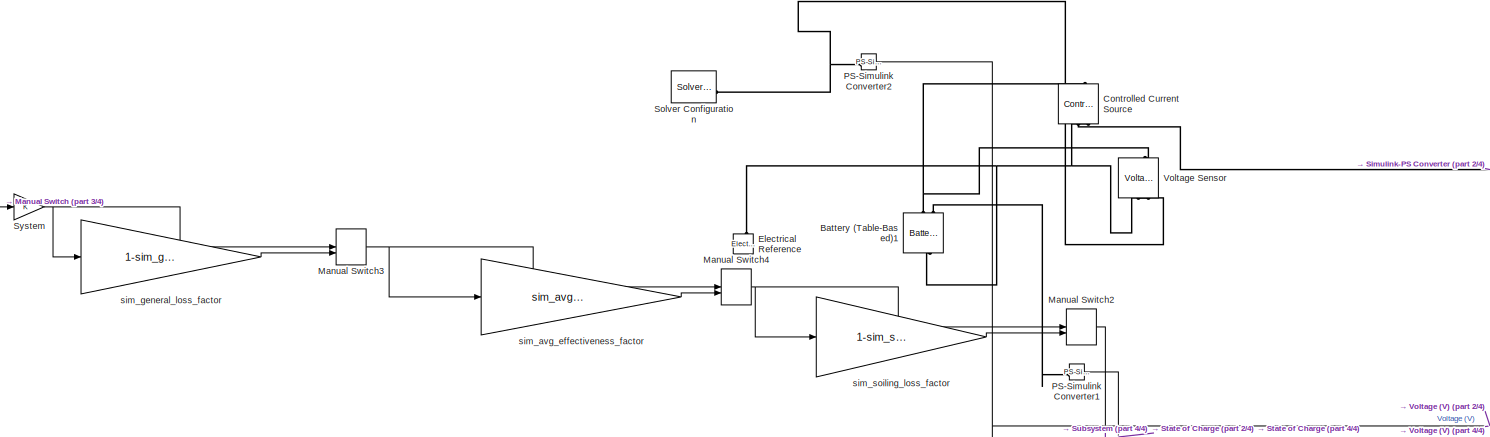
[diagram: root canvas - part 1/4, top center region]
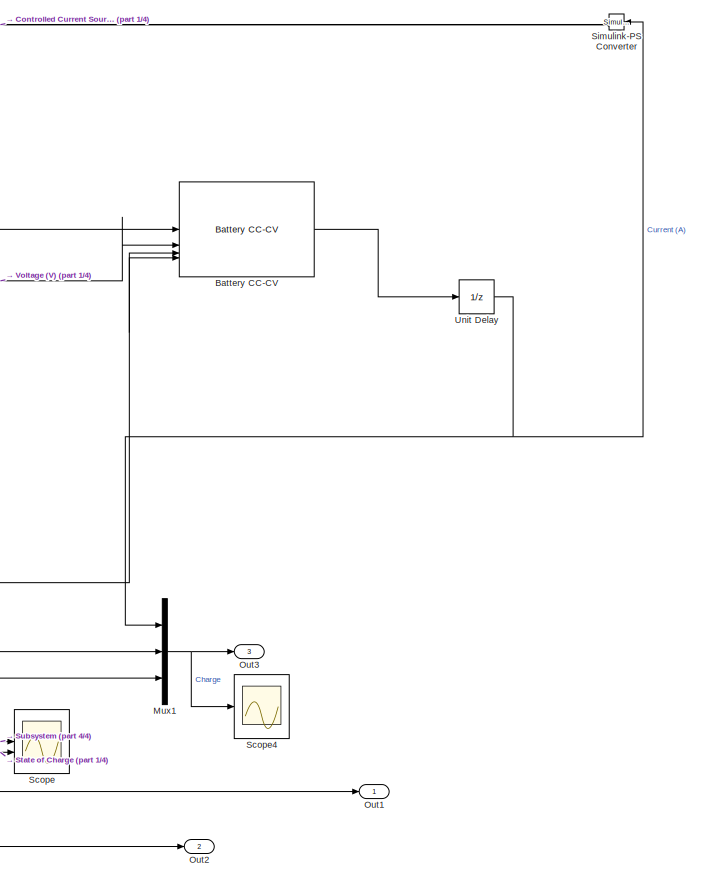
[diagram: root canvas - part 2/4, right side, full height]
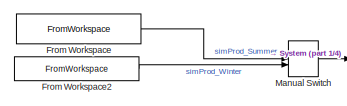
[diagram: root canvas - part 3/4, top left region]
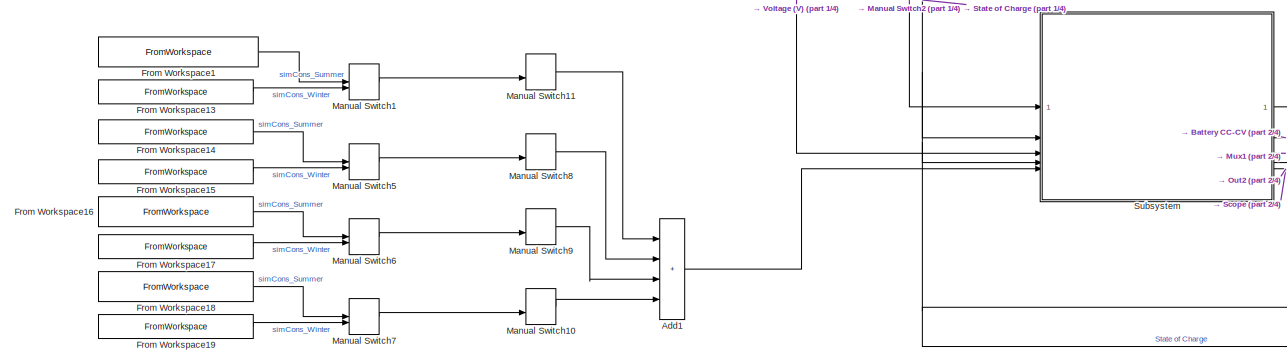
[diagram: root canvas - part 4/4, bottom center region]
MODEL slx_257fae8909c5
KIND model
CONFIG AbsTol = auto
CONFIG EnableMultiTasking = on
CONFIG FixedStep = Ts
CONFIG MaxStep = auto
CONFIG MinStep = auto
CONFIG PreLoadFcn = BatteryCCCVData;
CONFIG RelTol = 1e-3
CONFIG SampleTimeConstraint = Unconstrained
CONFIG SolverName = VariableStepAuto
CONFIG StartTime = 0.0
CONFIG StopTime = 5*23*3600
BLOCK [Sum] Add1
  IconShape = rectangular
  Inputs = ++++
BLOCK [Reference] Battery (Table-Based)1  REF=batteryecm_lib/Battery
(Table-Based)
  AttributesFormatString = Valence:U1_12XP
  LibrarySourceBlock = batt_lib/Cells/Battery\n(Table-Based)
  NameLocation = left
  SourceBlock = batteryecm_lib/Battery\n(Table-Based)
  SourceType = Battery\n(Table-Based)
  Tag = {'toolbox/physmod/battery/shared_library/m/batteryecm_lib_parts';'Battery__Table_Based_/Valence/U1_12XP.xml'}
BLOCK [Reference] Battery CC-CV  REF=BatteryCurrentManagement/Battery CC-CV
  LibrarySourceBlock = batt_sl_lib/Current Management/Battery CC-CV
  SourceBlock = BatteryCurrentManagement/Battery CC-CV
  SourceType = Battery CC-CV
BLOCK [Reference] Controlled Current Source  REF=fl_lib/Electrical/Electrical Sources/Controlled Current
Source
  NameLocation = right
  SourceBlock = fl_lib/Electrical/Electrical Sources/Controlled Current\nSource
  SourceType = Controlled Current\nSource
BLOCK [Reference] Electrical Reference  REF=fl_lib/Electrical/Electrical Elements/Electrical Reference
  NameLocation = right
  SourceBlock = fl_lib/Electrical/Electrical Elements/Electrical Reference
  SourceType = Electrical Reference
BLOCK [FromWorkspace] From Workspace
  VariableName = simProd_SUMMER_raw
BLOCK [FromWorkspace] From Workspace1
  VariableName = simCons_SUMMER_mean
BLOCK [FromWorkspace] From Workspace13
  VariableName = simCons_WINTER_mean
BLOCK [FromWorkspace] From Workspace14
  VariableName = simCons_System1_SUMMER
BLOCK [FromWorkspace] From Workspace15
  VariableName = simCons_System1_WINTER
BLOCK [FromWorkspace] From Workspace16
  VariableName = simCons_System2_SUMMER
BLOCK [FromWorkspace] From Workspace17
  VariableName = simCons_System2_WINTER
BLOCK [FromWorkspace] From Workspace18
  VariableName = simCons_System3_SUMMER
BLOCK [FromWorkspace] From Workspace19
  VariableName = simCons_System3_WINTER
BLOCK [FromWorkspace] From Workspace2
  VariableName = simProd_WINTER_raw
BLOCK [ManualSwitch] Manual Switch
  CurrentSetting = 0
BLOCK [ManualSwitch] Manual Switch1
  CurrentSetting = 0
BLOCK [ManualSwitch] Manual Switch10
  CurrentSetting = 0
BLOCK [ManualSwitch] Manual Switch11
BLOCK [ManualSwitch] Manual Switch2
  CurrentSetting = 0
BLOCK [ManualSwitch] Manual Switch3
  CurrentSetting = 0
BLOCK [ManualSwitch] Manual Switch4
  CurrentSetting = 0
BLOCK [ManualSwitch] Manual Switch5
  CurrentSetting = 0
BLOCK [ManualSwitch] Manual Switch6
BLOCK [ManualSwitch] Manual Switch7
  CurrentSetting = 0
BLOCK [ManualSwitch] Manual Switch8
BLOCK [ManualSwitch] Manual Switch9
BLOCK [Mux] Mux1
  DisplayOption = bar
  Inputs = 3
BLOCK [Outport] Out1
BLOCK [Outport] Out2
  Port = 2
BLOCK [Outport] Out3
  Port = 3
BLOCK [Reference] PS-Simulink Converter1  REF=nesl_utility/PS-Simulink
Converter
  SourceBlock = nesl_utility/PS-Simulink\nConverter
  SourceType = PS-Simulink\nConverter
BLOCK [Reference] PS-Simulink Converter2  REF=nesl_utility/PS-Simulink
Converter
  SourceBlock = nesl_utility/PS-Simulink\nConverter
  SourceType = PS-Simulink\nConverter
BLOCK [Scope] Scope
  Floating = off
  NumInputPorts = 2
  ScopeSpecificationString = Simulink.scopes.TimeScopeBlockCfg('CurrentConfiguration', extmgr.ConfigurationSet(extmgr.Configuration('Core','General UI',true,'FigureColor',[1 1 1]),extmgr.Configuration('Core','Source UI',true),extmgr.Configuration('Sources','WiredSimulink',true),extmgr.Configuration('Visuals','Time Domain',true,'SerializedDisplays',{struct('MinYLimReal','-22.94529','MaxYLimReal','206.50762','YLabelReal','','Mi...<+2675ch>
BLOCK [Scope] Scope4
  Floating = off
  NumInputPorts = 1
  ScopeSpecificationString = Simulink.scopes.TimeScopeBlockCfg('CurrentConfiguration', extmgr.ConfigurationSet(extmgr.Configuration('Core','General UI',true,'FigureColor',[1 1 1]),extmgr.Configuration('Core','Source UI',true),extmgr.Configuration('Sources','WiredSimulink',true,'DataLoggingVariableName','ScopeData1'),extmgr.Configuration('Visuals','Time Domain',true,'SerializedDisplays',{struct('MinYLimReal','-0.79609','MaxYLi...<+2087ch>
BLOCK [Reference] Simulink-PS Converter  REF=nesl_utility/Simulink-PS
Converter
  NameLocation = top
  SourceBlock = nesl_utility/Simulink-PS\nConverter
  SourceType = Simulink-PS\nConverter
BLOCK [Reference] Solver Configuration  REF=nesl_utility/Solver
Configuration
  SourceBlock = nesl_utility/Solver\nConfiguration
  SourceType = Solver\nConfiguration
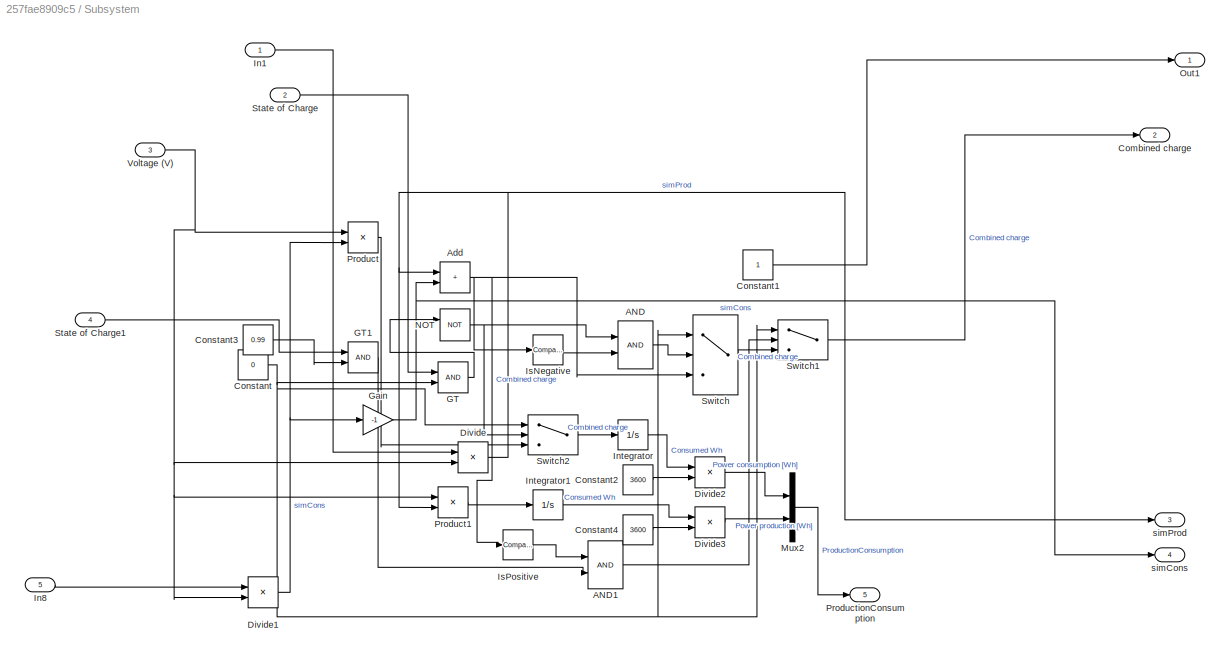
BLOCK [SubSystem] Subsystem
BLOCK [Logic] Subsystem/AND
  AllPortsSameDT = off
  IconShape = distinctive
  OutDataTypeStr = boolean
BLOCK [Logic] Subsystem/AND1
  AllPortsSameDT = off
  IconShape = distinctive
  OutDataTypeStr = boolean
BLOCK [Sum] Subsystem/Add
  IconShape = rectangular
BLOCK [Outport] Subsystem/Combined charge
  Port = 2
BLOCK [Constant] Subsystem/Constant
  Value = 0
BLOCK [Constant] Subsystem/Constant1
BLOCK [Constant] Subsystem/Constant2
  Value = 3600
BLOCK [Constant] Subsystem/Constant3
  Value = 0.99
BLOCK [Constant] Subsystem/Constant4
  Value = 3600
BLOCK [Product] Subsystem/Divide
  Inputs = */
BLOCK [Product] Subsystem/Divide1
  Inputs = */
BLOCK [Product] Subsystem/Divide2
  Inputs = */
BLOCK [Product] Subsystem/Divide3
  Inputs = */
BLOCK [RelationalOperator] Subsystem/GT
  InputSameDT = off
  OutDataTypeStr = boolean
  RndMeth = Simplest
BLOCK [RelationalOperator] Subsystem/GT1
  InputSameDT = off
  OutDataTypeStr = boolean
  RndMeth = Simplest
BLOCK [Gain] Subsystem/Gain
  Gain = -1
BLOCK [Inport] Subsystem/In1
BLOCK [Inport] Subsystem/In8
  Port = 5
BLOCK [Integrator] Subsystem/Integrator
BLOCK [Integrator] Subsystem/Integrator1
BLOCK [Reference] Subsystem/IsNegative  REF=simulink/Logic and Bit
Operations/Compare
To Zero
  LibrarySourceBlock = simulink/Quick Insert/Logic and Bit\nOperations/IsNegative
  SourceBlock = simulink/Logic and Bit\nOperations/Compare\nTo Zero
  SourceType = Compare To Zero
BLOCK [Reference] Subsystem/IsPositive  REF=simulink/Logic and Bit
Operations/Compare
To Zero
  LibrarySourceBlock = simulink/Quick Insert/Logic and Bit\nOperations/IsPositive
  SourceBlock = simulink/Logic and Bit\nOperations/Compare\nTo Zero
  SourceType = Compare To Zero
BLOCK [Mux] Subsystem/Mux2
  DisplayOption = bar
  Inputs = 2
BLOCK [Logic] Subsystem/NOT
  AllPortsSameDT = off
  IconShape = distinctive
  Operator = NOT
  OutDataTypeStr = boolean
BLOCK [Outport] Subsystem/Out1
BLOCK [Product] Subsystem/Product
BLOCK [Product] Subsystem/Product1
BLOCK [Outport] Subsystem/ProductionConsumption
  Port = 5
BLOCK [Inport] Subsystem/State of Charge
  Port = 2
BLOCK [Inport] Subsystem/State of Charge1
  Port = 4
BLOCK [Switch] Subsystem/Switch
  Criteria = u2 > Threshold
  InputSameDT = off
  SaturateOnIntegerOverflow = off
BLOCK [Switch] Subsystem/Switch1
  Criteria = u2 > Threshold
  InputSameDT = off
  SaturateOnIntegerOverflow = off
BLOCK [Switch] Subsystem/Switch2
  Criteria = u2 > Threshold
  InputSameDT = off
  SaturateOnIntegerOverflow = off
BLOCK [Inport] Subsystem/Voltage (V)
  Port = 3
BLOCK [Outport] Subsystem/simCons
  Port = 4
BLOCK [Outport] Subsystem/simProd
  Port = 3
BLOCK [Gain] System
BLOCK [UnitDelay] Unit Delay
  HasFrameUpgradeWarning = on
  NameLocation = top
  SampleTime = -1
BLOCK [Reference] Voltage Sensor  REF=fl_lib/Electrical/Electrical Sensors/Voltage Sensor
  NameLocation = right
  SourceBlock = fl_lib/Electrical/Electrical Sensors/Voltage Sensor
  SourceType = Voltage Sensor
BLOCK [Gain] sim_avg_effectiveness_factor
  Gain = sim_avg_effectiveness_factor
BLOCK [Gain] sim_general_loss_factor
  Gain = 1-sim_general_loss_factor
BLOCK [Gain] sim_soiling_loss_factor
  Gain = 1-sim_soiling_loss_factor
LINE Add1:1 -> Subsystem:5
LINE Battery CC-CV:1 -> Unit Delay:1
LINE From Workspace13:1 -> Manual Switch1:2
LINE From Workspace14:1 -> Manual Switch5:1
LINE From Workspace15:1 -> Manual Switch5:2
LINE From Workspace16:1 -> Manual Switch6:1
LINE From Workspace17:1 -> Manual Switch6:2
LINE From Workspace18:1 -> Manual Switch7:1
LINE From Workspace19:1 -> Manual Switch7:2
LINE From Workspace1:1 -> Manual Switch1:1
LINE From Workspace2:1 -> Manual Switch:2
LINE From Workspace:1 -> Manual Switch:1
LINE Manual Switch10:1 -> Add1:4
LINE Manual Switch11:1 -> Add1:1
LINE Manual Switch1:1 -> Manual Switch11:2
LINE Manual Switch2:1 -> Subsystem:1
NET Manual Switch3:1 -> Manual Switch4:1, sim_avg_effectiveness_factor:1
NET Manual Switch4:1 -> Manual Switch2:1, sim_soiling_loss_factor:1
LINE Manual Switch5:1 -> Manual Switch8:2
LINE Manual Switch6:1 -> Manual Switch9:2
LINE Manual Switch7:1 -> Manual Switch10:2
LINE Manual Switch8:1 -> Add1:2
LINE Manual Switch9:1 -> Add1:3
LINE Manual Switch:1 -> System:1
NET Mux1:1 -> Out3:1, Scope4:1
NET PS-Simulink Converter1:1 -> Out1:1, Scope:2, Subsystem:2, Subsystem:4
NET PS-Simulink Converter2:1 -> Battery CC-CV:2, Subsystem:3
LINE Subsystem/AND1:1 -> Subsystem/Switch1:2
LINE Subsystem/AND:1 -> Subsystem/Switch:2
NET Subsystem/Add:1 -> Subsystem/IsNegative:1, Subsystem/IsPositive:1, Subsystem/Switch:3
LINE Subsystem/Constant1:1 -> Subsystem/Out1:1
LINE Subsystem/Constant2:1 -> Subsystem/Divide2:2
LINE Subsystem/Constant3:1 -> Subsystem/GT1:2
LINE Subsystem/Constant4:1 -> Subsystem/Divide3:2
NET Subsystem/Constant:1 -> Subsystem/GT:2, Subsystem/Switch1:1, Subsystem/Switch2:1, Subsystem/Switch:1
NET Subsystem/Divide1:1 -> Subsystem/Gain:1, Subsystem/Product:2
LINE Subsystem/Divide2:1 -> Subsystem/Mux2:1
LINE Subsystem/Divide3:1 -> Subsystem/Mux2:2
NET Subsystem/Divide:1 -> Subsystem/Add:1, Subsystem/Product1:2, Subsystem/simProd:1
LINE Subsystem/GT1:1 -> Subsystem/AND1:2
LINE Subsystem/GT:1 -> Subsystem/NOT:1
NET Subsystem/Gain:1 -> Subsystem/Add:2, Subsystem/simCons:1
LINE Subsystem/In1:1 -> Subsystem/Divide:1
LINE Subsystem/In8:1 -> Subsystem/Divide1:1
LINE Subsystem/Integrator1:1 -> Subsystem/Divide3:1
LINE Subsystem/Integrator:1 -> Subsystem/Divide2:1
LINE Subsystem/IsNegative:1 -> Subsystem/AND:2
LINE Subsystem/IsPositive:1 -> Subsystem/AND1:1
LINE Subsystem/Mux2:1 -> Subsystem/ProductionConsumption:1
NET Subsystem/NOT:1 -> Subsystem/AND:1, Subsystem/Switch2:2
LINE Subsystem/Product1:1 -> Subsystem/Integrator1:1
LINE Subsystem/Product:1 -> Subsystem/Switch2:3
LINE Subsystem/State of Charge1:1 -> Subsystem/GT1:1
LINE Subsystem/State of Charge:1 -> Subsystem/GT:1
LINE Subsystem/Switch1:1 -> Subsystem/Combined charge:1
LINE Subsystem/Switch2:1 -> Subsystem/Integrator:1
LINE Subsystem/Switch:1 -> Subsystem/Switch1:3
NET Subsystem/Voltage (V):1 -> Subsystem/Divide1:2, Subsystem/Divide:2, Subsystem/Product1:1, Subsystem/Product:1
LINE Subsystem:1 -> Battery CC-CV:1
NET Subsystem:2 -> Battery CC-CV:3, Battery CC-CV:4
LINE Subsystem:3 -> Mux1:2
LINE Subsystem:4 -> Mux1:3
NET Subsystem:5 -> Out2:1, Scope:1
NET System:1 -> Manual Switch3:1, sim_general_loss_factor:1
NET Unit Delay:1 -> Mux1:1, Simulink-PS Converter:1
LINE sim_avg_effectiveness_factor:1 -> Manual Switch4:2
LINE sim_general_loss_factor:1 -> Manual Switch3:2
LINE sim_soiling_loss_factor:1 -> Manual Switch2:2
PNET net1: Battery (Table-Based)1:LConn1 -- Controlled Current Source:LConn1 -- Voltage Sensor:LConn1
PLINE Battery (Table-Based)1:LConn2 -- PS-Simulink Converter1:LConn1
PNET net2: Battery (Table-Based)1:RConn1 -- Controlled Current Source:RConn2 -- Electrical Reference:LConn1 -- Voltage Sensor:RConn2
PLINE Controlled Current Source:RConn1 -- Simulink-PS Converter:RConn1
PNET net3: PS-Simulink Converter2:LConn1 -- Solver Configuration:RConn1 -- Voltage Sensor:RConn1
note: NET lines group one-source signal fan-out (src -> all destinations, sorted); 1:1 wires keep LINE; PNET lines group multi-terminal physical nets as a canonical sorted terminal list (undirected conserving connections); 2-terminal nets keep the pairwise PLINE form
